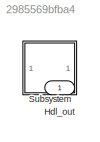
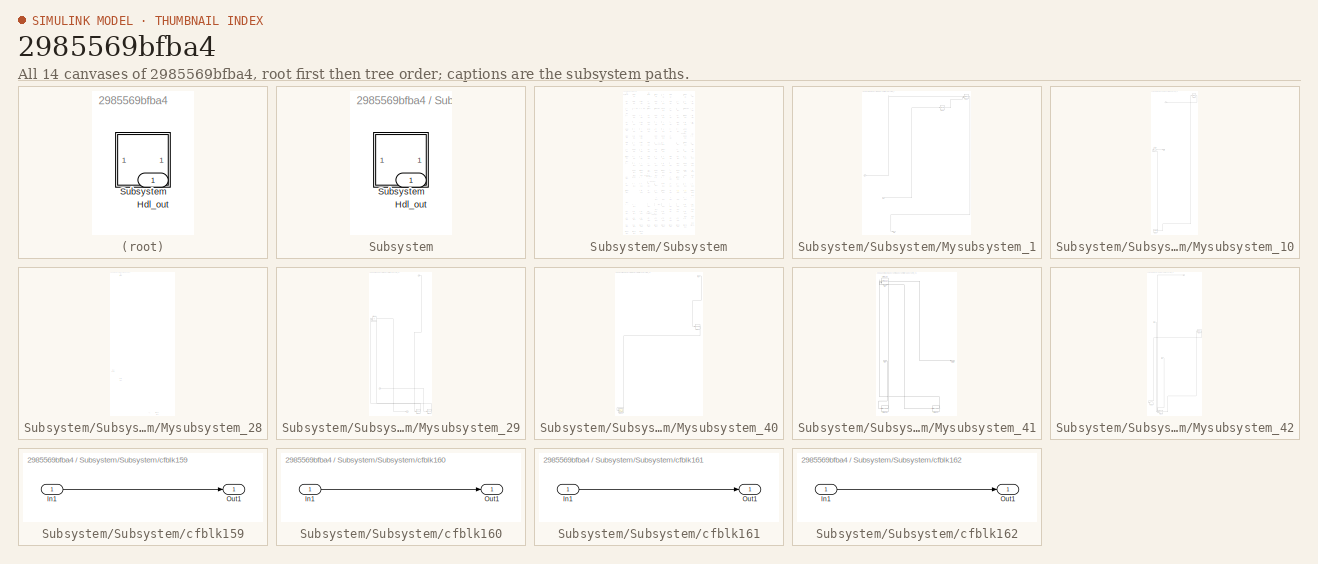
[diagram: thumbnail index - all 14 canvases of the model, root first then tree order]
MODEL slx_2985569bfba4
KIND model
CONFIG AbsTol = auto
CONFIG EnableMultiTasking = off
CONFIG FixedStep = auto
CONFIG MaxStep = auto
CONFIG MinStep = auto
CONFIG RelTol = 1e-3
CONFIG SampleTimeConstraint = Unconstrained
CONFIG SolverName = VariableStepAuto
CONFIG StartTime = 0.0
CONFIG StopTime = 10.0
BLOCK [Outport] Hdl_out
  OutDataTypeStr = uint8
BLOCK [SubSystem] Subsystem
BLOCK [Outport] Subsystem/Hdl_out
  OutDataTypeStr = uint8
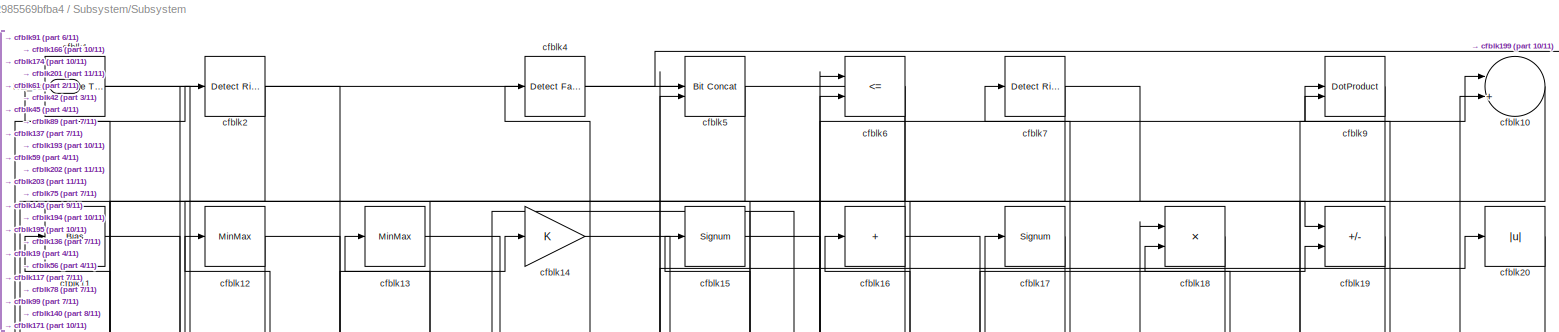
[diagram: Subsystem/Subsystem - part 1/11, full width, top band]
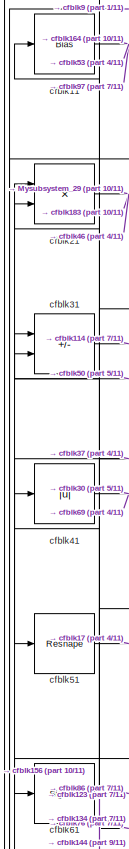
[diagram: Subsystem/Subsystem - part 2/11, top left region]
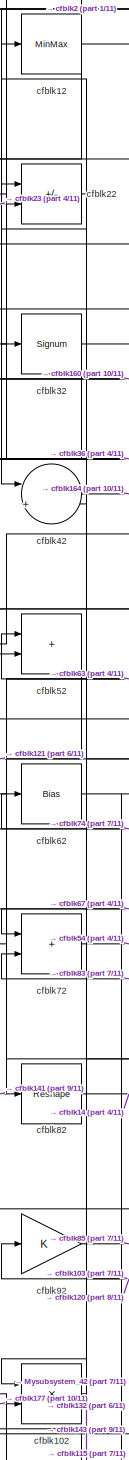
[diagram: Subsystem/Subsystem - part 3/11, top left region]
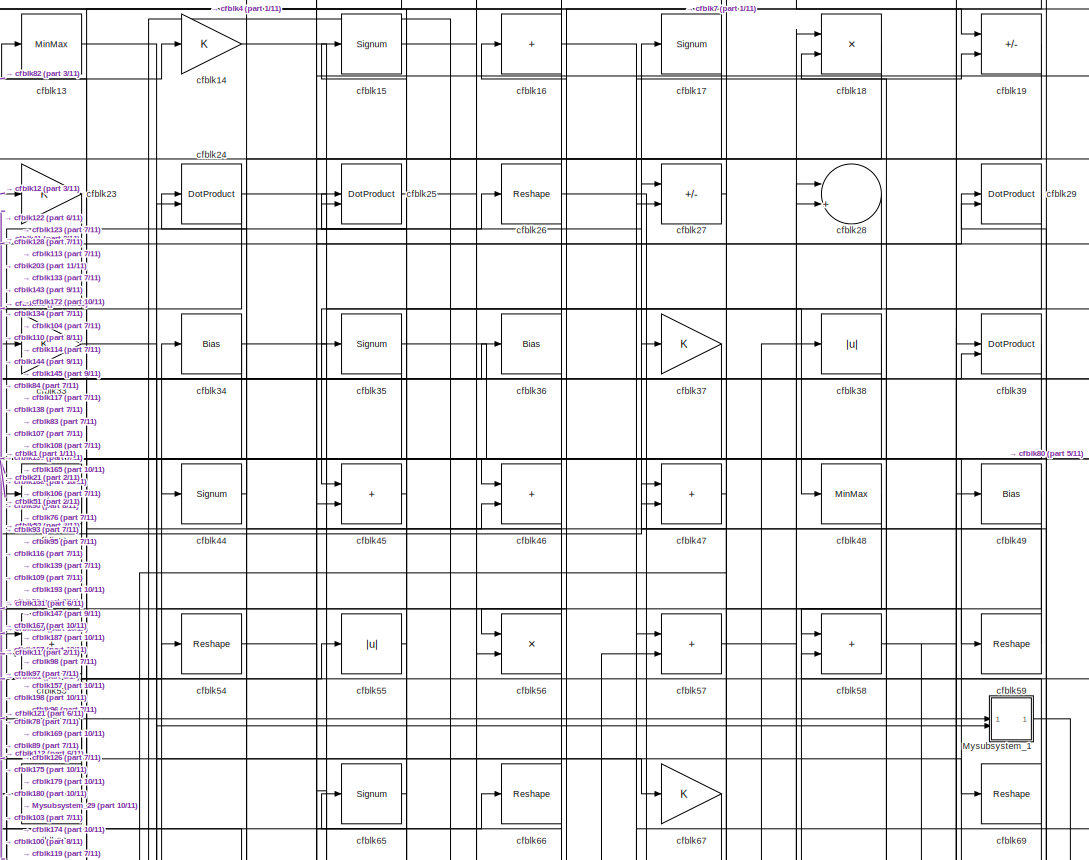
[diagram: Subsystem/Subsystem - part 4/11, top center region]
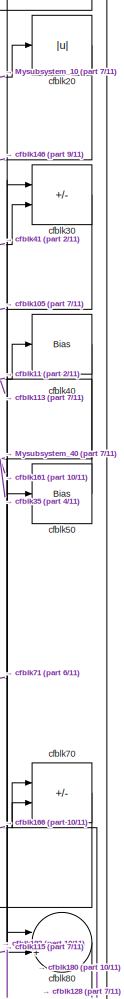
[diagram: Subsystem/Subsystem - part 5/11, top right region]
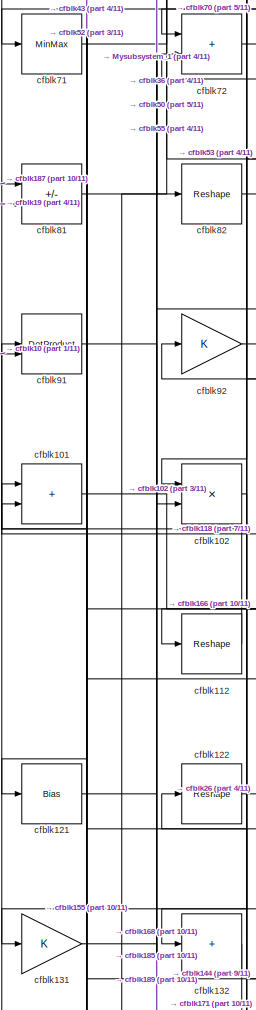
[diagram: Subsystem/Subsystem - part 6/11, middle left region]
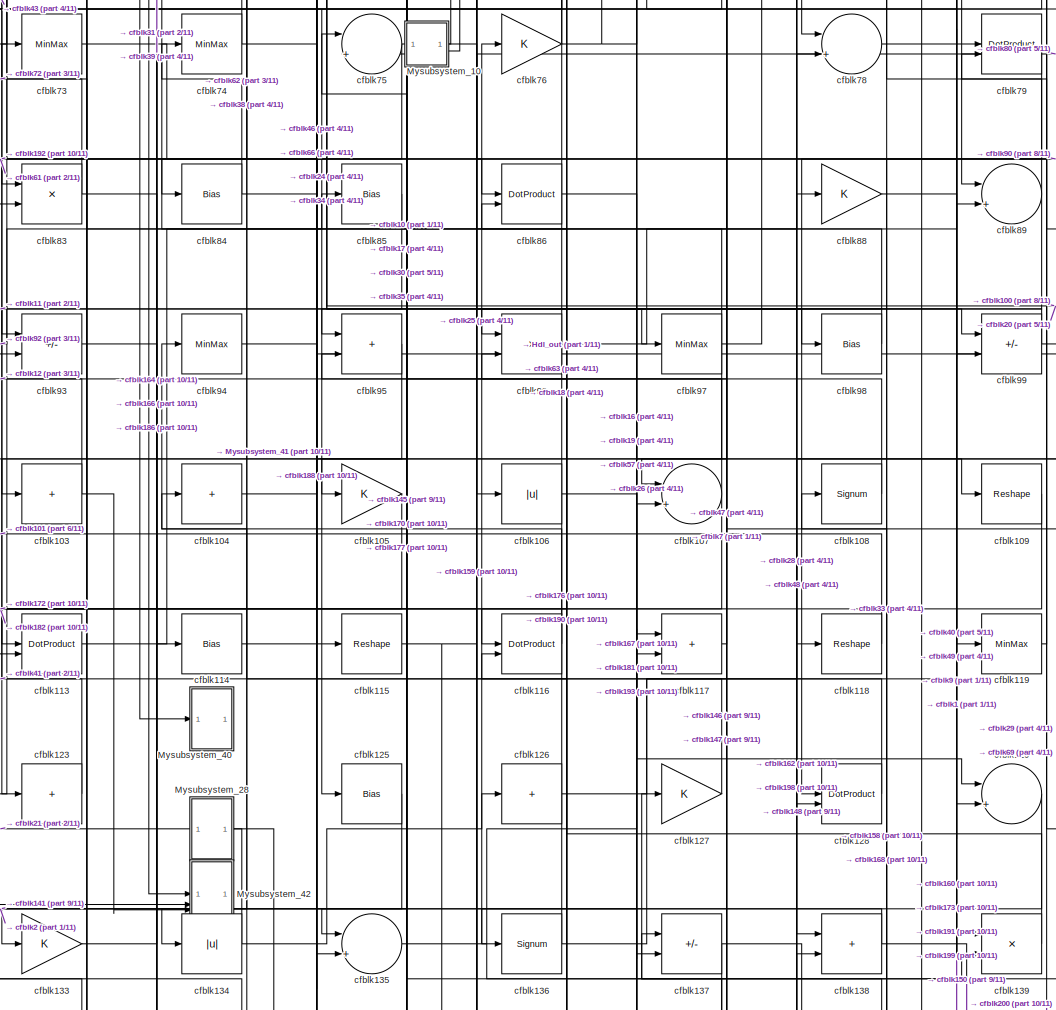
[diagram: Subsystem/Subsystem - part 7/11, central region]
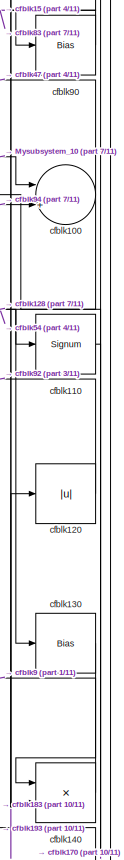
[diagram: Subsystem/Subsystem - part 8/11, middle right region]
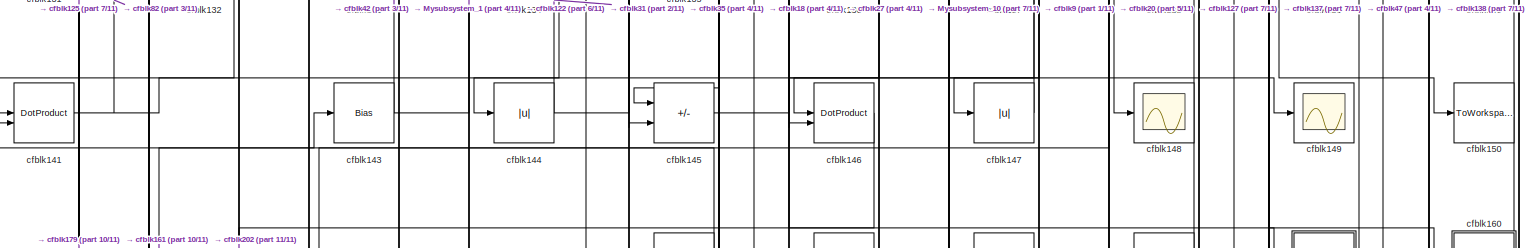
[diagram: Subsystem/Subsystem - part 9/11, full width, bottom band]
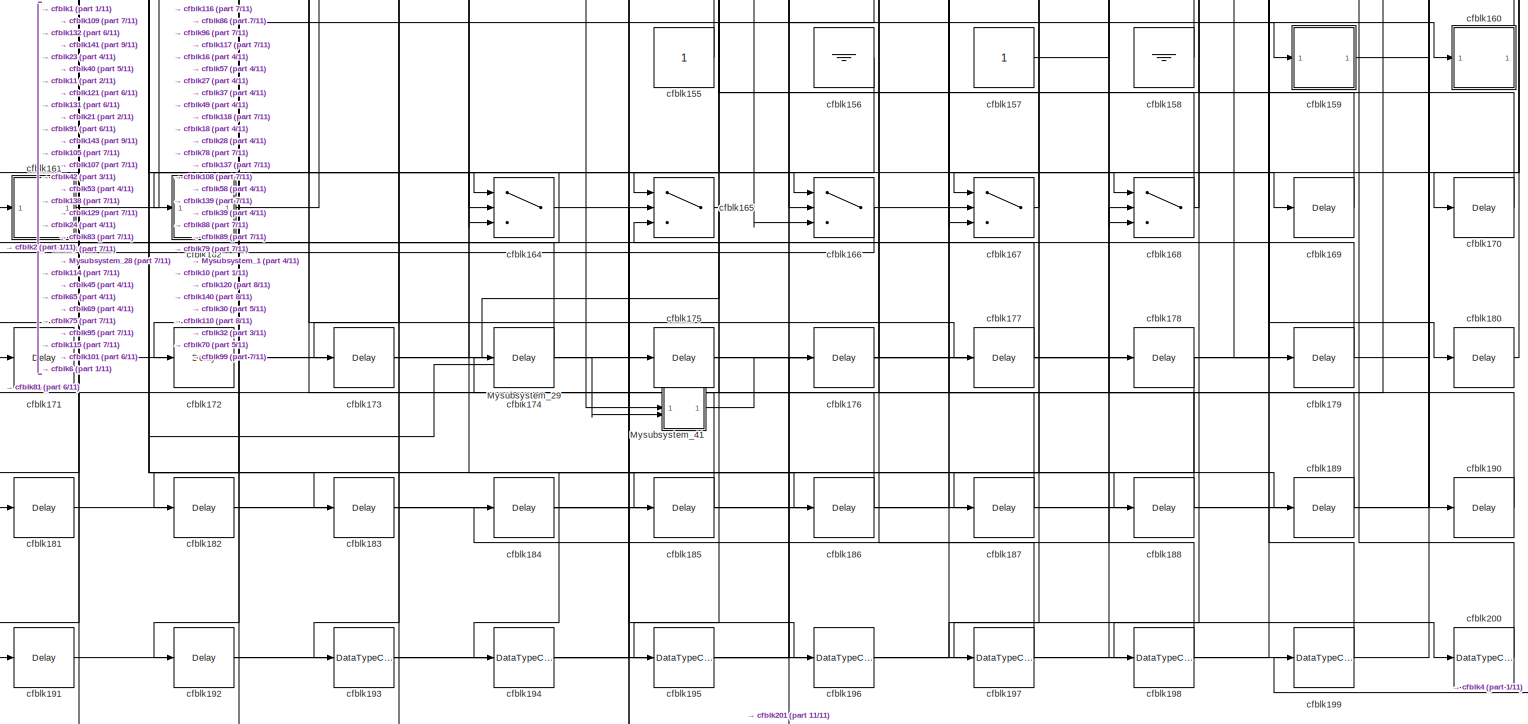
[diagram: Subsystem/Subsystem - part 10/11, full width, bottom band]
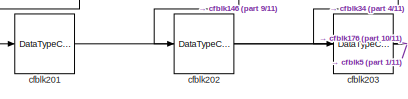
[diagram: Subsystem/Subsystem - part 11/11, bottom left region]
BLOCK [SubSystem] Subsystem/Subsystem
BLOCK [Outport] Subsystem/Subsystem/Hdl_out
  OutDataTypeStr = uint8
BLOCK [SubSystem] Subsystem/Subsystem/Mysubsystem_1
  RTWFcnName = Mysubsystem_1
  RTWFcnNameOpts = User specified
  RTWFileNameOpts = Use function name
  RTWSystemCode = Reusable function
  TreatAsAtomicUnit = on
BLOCK [Inport] Subsystem/Subsystem/Mysubsystem_1/In1
BLOCK [Inport] Subsystem/Subsystem/Mysubsystem_1/In2
  Port = 2
BLOCK [Outport] Subsystem/Subsystem/Mysubsystem_1/Out1
BLOCK [DotProduct] Subsystem/Subsystem/Mysubsystem_1/cfblk60
  OutDataTypeStr = Inherit: Inherit via internal rule
BLOCK [Signum] Subsystem/Subsystem/Mysubsystem_1/cfblk68
BLOCK [SubSystem] Subsystem/Subsystem/Mysubsystem_10
  RTWFcnName = Mysubsystem_10
  RTWFcnNameOpts = User specified
  RTWFileNameOpts = Use function name
  RTWSystemCode = Reusable function
  TreatAsAtomicUnit = on
BLOCK [Outport] Subsystem/Subsystem/Mysubsystem_10/Out2
  Port = 2
BLOCK [Reference] Subsystem/Subsystem/Mysubsystem_10/cfblk154  REF=hdlsllib/Sources/Counter
Free-Running
  SourceBlock = hdlsllib/Sources/Counter\nFree-Running
  SourceType = Counter Free-Running
BLOCK [Gain] Subsystem/Subsystem/Mysubsystem_10/cfblk64
BLOCK [Reference] Subsystem/Subsystem/Mysubsystem_10/cfblk8  REF=simulink/Logic and Bit
Operations/Extract Bits
  LibrarySourceBlock = hdlsllib/Logic and Bit\nOperations/Extract Bits
  SourceBlock = simulink/Logic and Bit\nOperations/Extract Bits
  SourceType = Extract Bits
BLOCK [Outport] Subsystem/Subsystem/Mysubsystem_10/y
BLOCK [SubSystem] Subsystem/Subsystem/Mysubsystem_28
  RTWFcnName = Mysubsystem_28
  RTWFcnNameOpts = User specified
  RTWFileNameOpts = Use function name
  RTWSystemCode = Reusable function
  TreatAsAtomicUnit = on
BLOCK [Signum] Subsystem/Subsystem/Mysubsystem_28/cfblk142
BLOCK [Reference] Subsystem/Subsystem/Mysubsystem_28/cfblk153  REF=hdlsllib/Sources/Counter
Limited
  SourceBlock = hdlsllib/Sources/Counter\nLimited
  SourceType = Counter Limited
BLOCK [DataTypeConversion] Subsystem/Subsystem/Mysubsystem_28/cfblk208
  OutDataTypeStr = uint8
  RndMeth = Floor
  SaturateOnIntegerOverflow = off
BLOCK [Reference] Subsystem/Subsystem/Mysubsystem_28/cfblk3  REF=simulink/Logic and Bit
Operations/Extract Bits
  LibrarySourceBlock = hdlsllib/Logic and Bit\nOperations/Extract Bits
  SourceBlock = simulink/Logic and Bit\nOperations/Extract Bits
  SourceType = Extract Bits
BLOCK [Outport] Subsystem/Subsystem/Mysubsystem_28/y
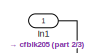
[diagram: Subsystem/Subsystem/Mysubsystem_29 - part 1/3, top right region]
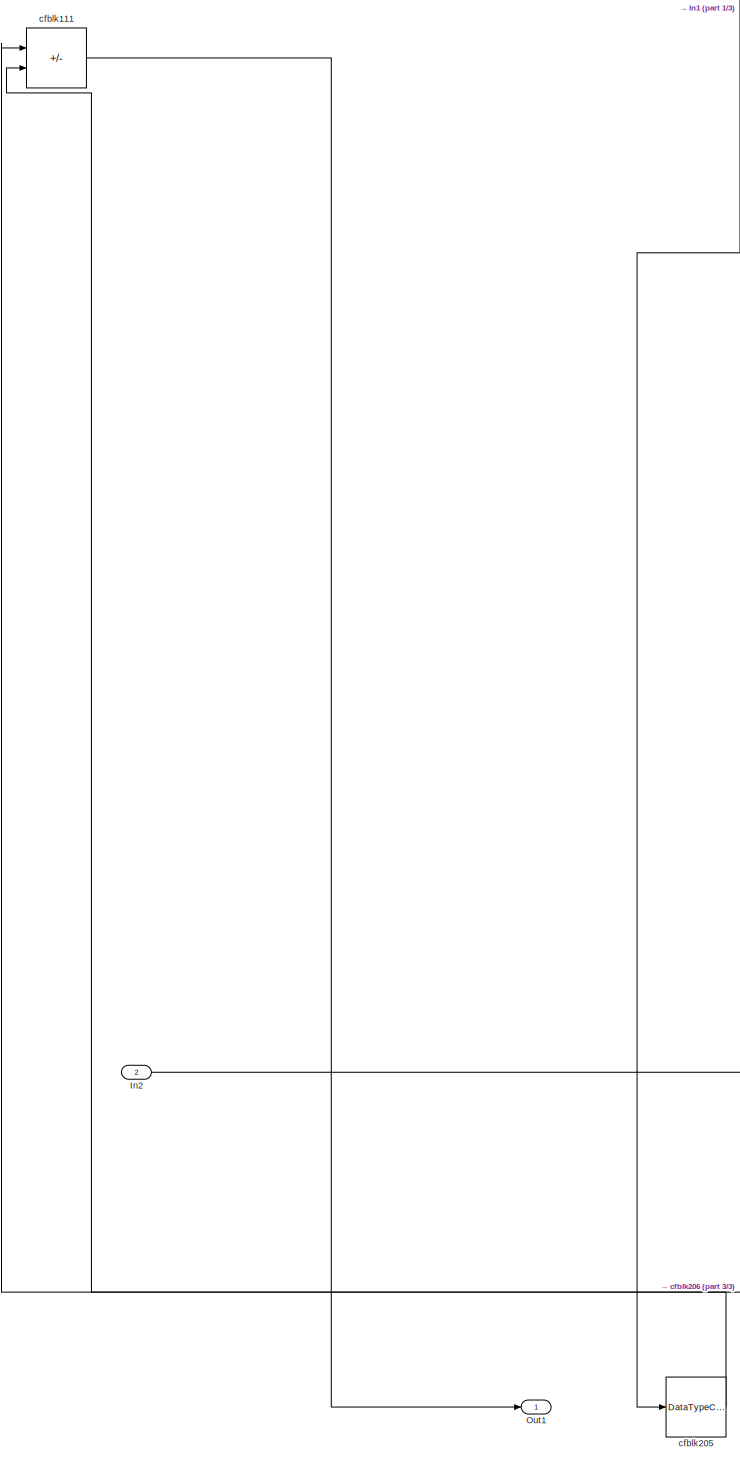
[diagram: Subsystem/Subsystem/Mysubsystem_29 - part 2/3, full width, middle band]
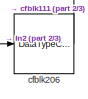
[diagram: Subsystem/Subsystem/Mysubsystem_29 - part 3/3, bottom right region]
BLOCK [SubSystem] Subsystem/Subsystem/Mysubsystem_29
  RTWFcnName = Mysubsystem_29
  RTWFcnNameOpts = User specified
  RTWFileNameOpts = Use function name
  RTWSystemCode = Reusable function
  TreatAsAtomicUnit = on
BLOCK [Inport] Subsystem/Subsystem/Mysubsystem_29/In1
BLOCK [Inport] Subsystem/Subsystem/Mysubsystem_29/In2
  Port = 2
BLOCK [Outport] Subsystem/Subsystem/Mysubsystem_29/Out1
BLOCK [Sum] Subsystem/Subsystem/Mysubsystem_29/cfblk111
  IconShape = rectangular
  Inputs = +-
BLOCK [DataTypeConversion] Subsystem/Subsystem/Mysubsystem_29/cfblk205
  OutDataTypeStr = uint8
  RndMeth = Floor
  SaturateOnIntegerOverflow = off
BLOCK [DataTypeConversion] Subsystem/Subsystem/Mysubsystem_29/cfblk206
  OutDataTypeStr = uint8
  RndMeth = Floor
  SaturateOnIntegerOverflow = off
BLOCK [SubSystem] Subsystem/Subsystem/Mysubsystem_40
  RTWFcnName = Mysubsystem_40
  RTWFcnNameOpts = User specified
  RTWFileNameOpts = Use function name
  RTWSystemCode = Reusable function
  TreatAsAtomicUnit = on
BLOCK [Inport] Subsystem/Subsystem/Mysubsystem_40/In1
BLOCK [Scope] Subsystem/Subsystem/Mysubsystem_40/cfblk151
  Floating = off
  NumInputPorts = 1
  ScopeSpecificationString = Simulink.scopes.TimeScopeBlockCfg('CurrentConfiguration', extmgr.ConfigurationSet(extmgr.Configuration('Core','General UI',true),extmgr.Configuration('Core','Source UI',true),extmgr.Configuration('Sources','WiredSimulink',true,'DataLoggingVariableName','ScopeData2','DataLoggingSaveFormat','Array','DataLoggingLimitDataPoints',true,'DataLoggingDecimation','1'),extmgr.Configuration('Visuals','Time Do...<+868ch>
BLOCK [Reshape] Subsystem/Subsystem/Mysubsystem_40/cfblk87
BLOCK [SubSystem] Subsystem/Subsystem/Mysubsystem_41
  RTWFcnName = Mysubsystem_41
  RTWFcnNameOpts = User specified
  RTWFileNameOpts = Use function name
  RTWSystemCode = Reusable function
  TreatAsAtomicUnit = on
BLOCK [Inport] Subsystem/Subsystem/Mysubsystem_41/In1
BLOCK [Inport] Subsystem/Subsystem/Mysubsystem_41/In2
  Port = 2
BLOCK [Outport] Subsystem/Subsystem/Mysubsystem_41/Out1
BLOCK [DotProduct] Subsystem/Subsystem/Mysubsystem_41/cfblk124
  OutDataTypeStr = Inherit: Inherit via internal rule
BLOCK [DataTypeConversion] Subsystem/Subsystem/Mysubsystem_41/cfblk204
  OutDataTypeStr = uint8
  RndMeth = Floor
  SaturateOnIntegerOverflow = off
BLOCK [DataTypeConversion] Subsystem/Subsystem/Mysubsystem_41/cfblk207
  OutDataTypeStr = uint8
  RndMeth = Floor
  SaturateOnIntegerOverflow = off
BLOCK [SubSystem] Subsystem/Subsystem/Mysubsystem_42
  RTWFcnName = Mysubsystem_42
  RTWFcnNameOpts = User specified
  RTWFileNameOpts = Use function name
  RTWSystemCode = Reusable function
  TreatAsAtomicUnit = on
BLOCK [Inport] Subsystem/Subsystem/Mysubsystem_42/In1
BLOCK [Inport] Subsystem/Subsystem/Mysubsystem_42/In2
  Port = 2
BLOCK [Inport] Subsystem/Subsystem/Mysubsystem_42/In3
  Port = 3
BLOCK [Terminator] Subsystem/Subsystem/Mysubsystem_42/cfblk152
BLOCK [Switch] Subsystem/Subsystem/Mysubsystem_42/cfblk163
  InputSameDT = off
  SaturateOnIntegerOverflow = off
BLOCK [MinMax] Subsystem/Subsystem/Mysubsystem_42/cfblk77
BLOCK [Reference] Subsystem/Subsystem/cfblk1  REF=hdlsllib/Logic and Bit
Operations/Compare
To Constant
  SourceBlock = hdlsllib/Logic and Bit\nOperations/Compare\nTo Constant
  SourceType = Compare To Constant
BLOCK [Sum] Subsystem/Subsystem/cfblk10
  Inputs = |++
  OutDataTypeStr = uint8
BLOCK [Sum] Subsystem/Subsystem/cfblk100
  Inputs = |++
  OutDataTypeStr = uint8
BLOCK [Sum] Subsystem/Subsystem/cfblk101
  IconShape = rectangular
  OutDataTypeStr = uint8
BLOCK [Product] Subsystem/Subsystem/cfblk102
  Inputs = */
  OutDataTypeStr = uint8
  RndMeth = Zero
  SaturateOnIntegerOverflow = on
BLOCK [Sum] Subsystem/Subsystem/cfblk103
  IconShape = rectangular
  Inputs = +
  OutDataTypeStr = uint8
BLOCK [Sum] Subsystem/Subsystem/cfblk104
  IconShape = rectangular
  Inputs = +
  OutDataTypeStr = uint8
BLOCK [Gain] Subsystem/Subsystem/cfblk105
  OutDataTypeStr = uint8
BLOCK [Abs] Subsystem/Subsystem/cfblk106
  OutDataTypeStr = uint8
  SaturateOnIntegerOverflow = off
BLOCK [Sum] Subsystem/Subsystem/cfblk107
  Inputs = |++
  OutDataTypeStr = uint8
BLOCK [Signum] Subsystem/Subsystem/cfblk108
BLOCK [Reshape] Subsystem/Subsystem/cfblk109
BLOCK [Bias] Subsystem/Subsystem/cfblk11
  Bias = 0.0
  SaturateOnIntegerOverflow = off
BLOCK [Signum] Subsystem/Subsystem/cfblk110
BLOCK [Reshape] Subsystem/Subsystem/cfblk112
BLOCK [DotProduct] Subsystem/Subsystem/cfblk113
  OutDataTypeStr = uint8
BLOCK [Bias] Subsystem/Subsystem/cfblk114
  Bias = 0.0
  SaturateOnIntegerOverflow = off
BLOCK [Reshape] Subsystem/Subsystem/cfblk115
BLOCK [DotProduct] Subsystem/Subsystem/cfblk116
  OutDataTypeStr = uint8
BLOCK [Sum] Subsystem/Subsystem/cfblk117
  IconShape = rectangular
  OutDataTypeStr = uint8
BLOCK [Reshape] Subsystem/Subsystem/cfblk118
BLOCK [MinMax] Subsystem/Subsystem/cfblk119
  OutDataTypeStr = uint8
BLOCK [MinMax] Subsystem/Subsystem/cfblk12
  OutDataTypeStr = uint8
BLOCK [Abs] Subsystem/Subsystem/cfblk120
  OutDataTypeStr = uint8
  SaturateOnIntegerOverflow = off
BLOCK [Bias] Subsystem/Subsystem/cfblk121
  Bias = 0.0
  SaturateOnIntegerOverflow = off
BLOCK [Reshape] Subsystem/Subsystem/cfblk122
BLOCK [Sum] Subsystem/Subsystem/cfblk123
  IconShape = rectangular
  Inputs = +
  OutDataTypeStr = uint8
BLOCK [Bias] Subsystem/Subsystem/cfblk125
  Bias = 0.0
  SaturateOnIntegerOverflow = off
BLOCK [Sum] Subsystem/Subsystem/cfblk126
  IconShape = rectangular
  Inputs = +
  OutDataTypeStr = uint8
BLOCK [Gain] Subsystem/Subsystem/cfblk127
  OutDataTypeStr = uint8
BLOCK [DotProduct] Subsystem/Subsystem/cfblk128
  OutDataTypeStr = uint8
BLOCK [Sum] Subsystem/Subsystem/cfblk129
  Inputs = |++
  OutDataTypeStr = uint8
BLOCK [MinMax] Subsystem/Subsystem/cfblk13
  OutDataTypeStr = uint8
BLOCK [Bias] Subsystem/Subsystem/cfblk130
  Bias = 0.0
  SaturateOnIntegerOverflow = off
BLOCK [Gain] Subsystem/Subsystem/cfblk131
  OutDataTypeStr = uint8
BLOCK [Sum] Subsystem/Subsystem/cfblk132
  IconShape = rectangular
  Inputs = +
  OutDataTypeStr = uint8
BLOCK [Gain] Subsystem/Subsystem/cfblk133
  OutDataTypeStr = uint8
BLOCK [Abs] Subsystem/Subsystem/cfblk134
  OutDataTypeStr = uint8
  SaturateOnIntegerOverflow = off
BLOCK [Sum] Subsystem/Subsystem/cfblk135
  Inputs = |++
  OutDataTypeStr = uint8
BLOCK [Signum] Subsystem/Subsystem/cfblk136
BLOCK [Sum] Subsystem/Subsystem/cfblk137
  IconShape = rectangular
  Inputs = +-
  OutDataTypeStr = uint8
BLOCK [Sum] Subsystem/Subsystem/cfblk138
  IconShape = rectangular
  OutDataTypeStr = uint8
BLOCK [Product] Subsystem/Subsystem/cfblk139
  Inputs = */
  OutDataTypeStr = uint8
  RndMeth = Zero
  SaturateOnIntegerOverflow = on
BLOCK [Gain] Subsystem/Subsystem/cfblk14
  OutDataTypeStr = uint8
BLOCK [Product] Subsystem/Subsystem/cfblk140
  Inputs = */
  OutDataTypeStr = uint8
  RndMeth = Zero
  SaturateOnIntegerOverflow = on
BLOCK [DotProduct] Subsystem/Subsystem/cfblk141
  OutDataTypeStr = uint8
BLOCK [Bias] Subsystem/Subsystem/cfblk143
  Bias = 0.0
  SaturateOnIntegerOverflow = off
BLOCK [Abs] Subsystem/Subsystem/cfblk144
  OutDataTypeStr = uint8
  SaturateOnIntegerOverflow = off
BLOCK [Sum] Subsystem/Subsystem/cfblk145
  IconShape = rectangular
  Inputs = +-
  OutDataTypeStr = uint8
BLOCK [DotProduct] Subsystem/Subsystem/cfblk146
  OutDataTypeStr = uint8
BLOCK [Abs] Subsystem/Subsystem/cfblk147
  OutDataTypeStr = uint8
  SaturateOnIntegerOverflow = off
BLOCK [Scope] Subsystem/Subsystem/cfblk148
  Floating = off
  NumInputPorts = 1
  ScopeSpecificationString = Simulink.scopes.TimeScopeBlockCfg('CurrentConfiguration', extmgr.ConfigurationSet(extmgr.Configuration('Core','General UI',true),extmgr.Configuration('Core','Source UI',true),extmgr.Configuration('Sources','WiredSimulink',true,'DataLoggingVariableName','ScopeData1','DataLoggingSaveFormat','Array','DataLoggingLimitDataPoints',true,'DataLoggingDecimation','1'),extmgr.Configuration('Visuals','Time Do...<+868ch>
BLOCK [Scope] Subsystem/Subsystem/cfblk149
  Floating = off
  NumInputPorts = 1
  ScopeSpecificationString = Simulink.scopes.TimeScopeBlockCfg('CurrentConfiguration', extmgr.ConfigurationSet(extmgr.Configuration('Core','General UI',true),extmgr.Configuration('Core','Source UI',true),extmgr.Configuration('Sources','WiredSimulink',true,'DataLoggingVariableName','ScopeData2','DataLoggingSaveFormat','Array','DataLoggingLimitDataPoints',true,'DataLoggingDecimation','1'),extmgr.Configuration('Visuals','Time Do...<+868ch>
BLOCK [Signum] Subsystem/Subsystem/cfblk15
BLOCK [ToWorkspace] Subsystem/Subsystem/cfblk150
  MaxDataPoints = inf
  SampleTime = -1
  SaveFormat = Timeseries
  VariableName = simout
BLOCK [Constant] Subsystem/Subsystem/cfblk155
  OutDataTypeStr = uint8
  SampleTime = -1
BLOCK [Ground] Subsystem/Subsystem/cfblk156
BLOCK [Constant] Subsystem/Subsystem/cfblk157
  OutDataTypeStr = uint8
  SampleTime = -1
BLOCK [Ground] Subsystem/Subsystem/cfblk158
BLOCK [SubSystem] Subsystem/Subsystem/cfblk159
  LibrarySourceBlock = hdlsllib/Ports &\nSubsystems/Subsystem
BLOCK [Inport] Subsystem/Subsystem/cfblk159/In1
BLOCK [Outport] Subsystem/Subsystem/cfblk159/Out1
BLOCK [Sum] Subsystem/Subsystem/cfblk16
  IconShape = rectangular
  Inputs = +
  OutDataTypeStr = uint8
BLOCK [SubSystem] Subsystem/Subsystem/cfblk160
  LibrarySourceBlock = hdlsllib/Ports &\nSubsystems/Subsystem
BLOCK [Inport] Subsystem/Subsystem/cfblk160/In1
BLOCK [Outport] Subsystem/Subsystem/cfblk160/Out1
BLOCK [SubSystem] Subsystem/Subsystem/cfblk161
  LibrarySourceBlock = hdlsllib/Ports &\nSubsystems/Subsystem
BLOCK [Inport] Subsystem/Subsystem/cfblk161/In1
BLOCK [Outport] Subsystem/Subsystem/cfblk161/Out1
BLOCK [SubSystem] Subsystem/Subsystem/cfblk162
  LibrarySourceBlock = hdlsllib/Ports &\nSubsystems/Subsystem
BLOCK [Inport] Subsystem/Subsystem/cfblk162/In1
BLOCK [Outport] Subsystem/Subsystem/cfblk162/Out1
BLOCK [Switch] Subsystem/Subsystem/cfblk164
  InputSameDT = off
  OutDataTypeStr = uint8
  SaturateOnIntegerOverflow = off
BLOCK [Switch] Subsystem/Subsystem/cfblk165
  InputSameDT = off
  OutDataTypeStr = uint8
  SaturateOnIntegerOverflow = off
BLOCK [Switch] Subsystem/Subsystem/cfblk166
  InputSameDT = off
  OutDataTypeStr = uint8
  SaturateOnIntegerOverflow = off
BLOCK [Switch] Subsystem/Subsystem/cfblk167
  InputSameDT = off
  OutDataTypeStr = uint8
  SaturateOnIntegerOverflow = off
BLOCK [Switch] Subsystem/Subsystem/cfblk168
  InputSameDT = off
  OutDataTypeStr = uint8
  SaturateOnIntegerOverflow = off
BLOCK [Delay] Subsystem/Subsystem/cfblk169
  InputPortMap = u0
  SampleTime = 1
BLOCK [Signum] Subsystem/Subsystem/cfblk17
BLOCK [Delay] Subsystem/Subsystem/cfblk170
  InputPortMap = u0
  SampleTime = 1
BLOCK [Delay] Subsystem/Subsystem/cfblk171
  InputPortMap = u0
  SampleTime = 1
BLOCK [Delay] Subsystem/Subsystem/cfblk172
  InputPortMap = u0
  SampleTime = 1
BLOCK [Delay] Subsystem/Subsystem/cfblk173
  InputPortMap = u0
  SampleTime = 1
BLOCK [Delay] Subsystem/Subsystem/cfblk174
  InputPortMap = u0
  SampleTime = 1
BLOCK [Delay] Subsystem/Subsystem/cfblk175
  InputPortMap = u0
  SampleTime = 1
BLOCK [Delay] Subsystem/Subsystem/cfblk176
  InputPortMap = u0
  SampleTime = 1
BLOCK [Delay] Subsystem/Subsystem/cfblk177
  InputPortMap = u0
  SampleTime = 1
BLOCK [Delay] Subsystem/Subsystem/cfblk178
  InputPortMap = u0
  SampleTime = 1
BLOCK [Delay] Subsystem/Subsystem/cfblk179
  InputPortMap = u0
  SampleTime = 1
BLOCK [Product] Subsystem/Subsystem/cfblk18
  Inputs = */
  OutDataTypeStr = uint8
  RndMeth = Zero
  SaturateOnIntegerOverflow = on
BLOCK [Delay] Subsystem/Subsystem/cfblk180
  InputPortMap = u0
  SampleTime = 1
BLOCK [Delay] Subsystem/Subsystem/cfblk181
  InputPortMap = u0
  SampleTime = 1
BLOCK [Delay] Subsystem/Subsystem/cfblk182
  InputPortMap = u0
  SampleTime = 1
BLOCK [Delay] Subsystem/Subsystem/cfblk183
  InputPortMap = u0
  SampleTime = 1
BLOCK [Delay] Subsystem/Subsystem/cfblk184
  InputPortMap = u0
  SampleTime = 1
BLOCK [Delay] Subsystem/Subsystem/cfblk185
  InputPortMap = u0
  SampleTime = 1
BLOCK [Delay] Subsystem/Subsystem/cfblk186
  InputPortMap = u0
  SampleTime = 1
BLOCK [Delay] Subsystem/Subsystem/cfblk187
  InputPortMap = u0
  SampleTime = 1
BLOCK [Delay] Subsystem/Subsystem/cfblk188
  InputPortMap = u0
  SampleTime = 1
BLOCK [Delay] Subsystem/Subsystem/cfblk189
  InputPortMap = u0
  SampleTime = 1
BLOCK [Sum] Subsystem/Subsystem/cfblk19
  IconShape = rectangular
  Inputs = +-
  OutDataTypeStr = uint8
BLOCK [Delay] Subsystem/Subsystem/cfblk190
  InputPortMap = u0
  SampleTime = 1
BLOCK [Delay] Subsystem/Subsystem/cfblk191
  InputPortMap = u0
  SampleTime = 1
BLOCK [Delay] Subsystem/Subsystem/cfblk192
  InputPortMap = u0
  SampleTime = 1
BLOCK [DataTypeConversion] Subsystem/Subsystem/cfblk193
  OutDataTypeStr = uint8
  RndMeth = Floor
  SaturateOnIntegerOverflow = off
BLOCK [DataTypeConversion] Subsystem/Subsystem/cfblk194
  OutDataTypeStr = uint8
  RndMeth = Floor
  SaturateOnIntegerOverflow = off
BLOCK [DataTypeConversion] Subsystem/Subsystem/cfblk195
  OutDataTypeStr = uint8
  RndMeth = Floor
  SaturateOnIntegerOverflow = off
BLOCK [DataTypeConversion] Subsystem/Subsystem/cfblk196
  OutDataTypeStr = uint8
  RndMeth = Floor
  SaturateOnIntegerOverflow = off
BLOCK [DataTypeConversion] Subsystem/Subsystem/cfblk197
  OutDataTypeStr = uint8
  RndMeth = Floor
  SaturateOnIntegerOverflow = off
BLOCK [DataTypeConversion] Subsystem/Subsystem/cfblk198
  OutDataTypeStr = uint8
  RndMeth = Floor
  SaturateOnIntegerOverflow = off
BLOCK [DataTypeConversion] Subsystem/Subsystem/cfblk199
  OutDataTypeStr = uint8
  RndMeth = Floor
  SaturateOnIntegerOverflow = off
BLOCK [Reference] Subsystem/Subsystem/cfblk2  REF=hdlsllib/Logic and Bit
Operations/Detect Rise
Nonnegative
  SourceBlock = hdlsllib/Logic and Bit\nOperations/Detect Rise\nNonnegative
  SourceType = Detect Rise Nonnegative
BLOCK [Abs] Subsystem/Subsystem/cfblk20
  OutDataTypeStr = uint8
  SaturateOnIntegerOverflow = off
BLOCK [DataTypeConversion] Subsystem/Subsystem/cfblk200
  OutDataTypeStr = uint8
  RndMeth = Floor
  SaturateOnIntegerOverflow = off
BLOCK [DataTypeConversion] Subsystem/Subsystem/cfblk201
  OutDataTypeStr = uint8
  RndMeth = Floor
  SaturateOnIntegerOverflow = off
BLOCK [DataTypeConversion] Subsystem/Subsystem/cfblk202
  OutDataTypeStr = uint8
  RndMeth = Floor
  SaturateOnIntegerOverflow = off
BLOCK [DataTypeConversion] Subsystem/Subsystem/cfblk203
  OutDataTypeStr = uint8
  RndMeth = Floor
  SaturateOnIntegerOverflow = off
BLOCK [Product] Subsystem/Subsystem/cfblk21
  Inputs = */
  OutDataTypeStr = uint8
  RndMeth = Zero
  SaturateOnIntegerOverflow = on
BLOCK [Sum] Subsystem/Subsystem/cfblk22
  IconShape = rectangular
  Inputs = +-
  OutDataTypeStr = uint8
BLOCK [Gain] Subsystem/Subsystem/cfblk23
  OutDataTypeStr = uint8
BLOCK [DotProduct] Subsystem/Subsystem/cfblk24
  OutDataTypeStr = uint8
BLOCK [DotProduct] Subsystem/Subsystem/cfblk25
  OutDataTypeStr = uint8
BLOCK [Reshape] Subsystem/Subsystem/cfblk26
BLOCK [Sum] Subsystem/Subsystem/cfblk27
  IconShape = rectangular
  Inputs = +-
  OutDataTypeStr = uint8
BLOCK [Sum] Subsystem/Subsystem/cfblk28
  Inputs = |++
  OutDataTypeStr = uint8
BLOCK [DotProduct] Subsystem/Subsystem/cfblk29
  OutDataTypeStr = uint8
BLOCK [Sum] Subsystem/Subsystem/cfblk30
  IconShape = rectangular
  Inputs = +-
  OutDataTypeStr = uint8
BLOCK [Sum] Subsystem/Subsystem/cfblk31
  IconShape = rectangular
  Inputs = +-
  OutDataTypeStr = uint8
BLOCK [Signum] Subsystem/Subsystem/cfblk32
BLOCK [Gain] Subsystem/Subsystem/cfblk33
  OutDataTypeStr = uint8
BLOCK [Bias] Subsystem/Subsystem/cfblk34
  Bias = 0.0
  SaturateOnIntegerOverflow = off
BLOCK [Signum] Subsystem/Subsystem/cfblk35
BLOCK [Bias] Subsystem/Subsystem/cfblk36
  Bias = 0.0
  SaturateOnIntegerOverflow = off
BLOCK [Gain] Subsystem/Subsystem/cfblk37
  OutDataTypeStr = uint8
BLOCK [Abs] Subsystem/Subsystem/cfblk38
  OutDataTypeStr = uint8
  SaturateOnIntegerOverflow = off
BLOCK [DotProduct] Subsystem/Subsystem/cfblk39
  OutDataTypeStr = uint8
BLOCK [Reference] Subsystem/Subsystem/cfblk4  REF=hdlsllib/Logic and Bit
Operations/Detect Fall
Nonpositive
  SourceBlock = hdlsllib/Logic and Bit\nOperations/Detect Fall\nNonpositive
  SourceType = Detect Fall Nonpositive
BLOCK [Bias] Subsystem/Subsystem/cfblk40
  Bias = 0.0
  SaturateOnIntegerOverflow = off
BLOCK [Abs] Subsystem/Subsystem/cfblk41
  OutDataTypeStr = uint8
  SaturateOnIntegerOverflow = off
BLOCK [Sum] Subsystem/Subsystem/cfblk42
  Inputs = |++
  OutDataTypeStr = uint8
BLOCK [Signum] Subsystem/Subsystem/cfblk43
BLOCK [Signum] Subsystem/Subsystem/cfblk44
BLOCK [Sum] Subsystem/Subsystem/cfblk45
  IconShape = rectangular
  OutDataTypeStr = uint8
BLOCK [Sum] Subsystem/Subsystem/cfblk46
  IconShape = rectangular
  OutDataTypeStr = uint8
BLOCK [Sum] Subsystem/Subsystem/cfblk47
  IconShape = rectangular
  OutDataTypeStr = uint8
BLOCK [MinMax] Subsystem/Subsystem/cfblk48
  OutDataTypeStr = uint8
BLOCK [Bias] Subsystem/Subsystem/cfblk49
  Bias = 0.0
  SaturateOnIntegerOverflow = off
BLOCK [Reference] Subsystem/Subsystem/cfblk5  REF=hdlsllib/Logic and Bit
Operations/Bit Concat
  SourceBlock = hdlsllib/Logic and Bit\nOperations/Bit Concat
  SourceType = Bit Concat
BLOCK [Bias] Subsystem/Subsystem/cfblk50
  Bias = 0.0
  SaturateOnIntegerOverflow = off
BLOCK [Reshape] Subsystem/Subsystem/cfblk51
BLOCK [Sum] Subsystem/Subsystem/cfblk52
  IconShape = rectangular
  OutDataTypeStr = uint8
BLOCK [Sum] Subsystem/Subsystem/cfblk53
  IconShape = rectangular
  OutDataTypeStr = uint8
BLOCK [Reshape] Subsystem/Subsystem/cfblk54
BLOCK [Abs] Subsystem/Subsystem/cfblk55
  OutDataTypeStr = uint8
  SaturateOnIntegerOverflow = off
BLOCK [Product] Subsystem/Subsystem/cfblk56
  Inputs = */
  OutDataTypeStr = uint8
  RndMeth = Zero
  SaturateOnIntegerOverflow = on
BLOCK [Sum] Subsystem/Subsystem/cfblk57
  IconShape = rectangular
  OutDataTypeStr = uint8
BLOCK [Sum] Subsystem/Subsystem/cfblk58
  IconShape = rectangular
  OutDataTypeStr = uint8
BLOCK [Reshape] Subsystem/Subsystem/cfblk59
BLOCK [RelationalOperator] Subsystem/Subsystem/cfblk6
  InputSameDT = off
  Operator = <=
  OutDataTypeStr = boolean
BLOCK [Signum] Subsystem/Subsystem/cfblk61
BLOCK [Bias] Subsystem/Subsystem/cfblk62
  Bias = 0.0
  SaturateOnIntegerOverflow = off
BLOCK [MinMax] Subsystem/Subsystem/cfblk63
  OutDataTypeStr = uint8
BLOCK [Signum] Subsystem/Subsystem/cfblk65
BLOCK [Reshape] Subsystem/Subsystem/cfblk66
BLOCK [Gain] Subsystem/Subsystem/cfblk67
  OutDataTypeStr = uint8
BLOCK [Reshape] Subsystem/Subsystem/cfblk69
BLOCK [Reference] Subsystem/Subsystem/cfblk7  REF=hdlsllib/Logic and Bit
Operations/Detect Rise
Positive
  SourceBlock = hdlsllib/Logic and Bit\nOperations/Detect Rise\nPositive
  SourceType = Detect Rise Positive
BLOCK [Sum] Subsystem/Subsystem/cfblk70
  IconShape = rectangular
  Inputs = +-
  OutDataTypeStr = uint8
BLOCK [MinMax] Subsystem/Subsystem/cfblk71
  OutDataTypeStr = uint8
BLOCK [Sum] Subsystem/Subsystem/cfblk72
  IconShape = rectangular
  OutDataTypeStr = uint8
BLOCK [MinMax] Subsystem/Subsystem/cfblk73
  OutDataTypeStr = uint8
BLOCK [MinMax] Subsystem/Subsystem/cfblk74
  OutDataTypeStr = uint8
BLOCK [Sum] Subsystem/Subsystem/cfblk75
  Inputs = |++
  OutDataTypeStr = uint8
BLOCK [Gain] Subsystem/Subsystem/cfblk76
  OutDataTypeStr = uint8
BLOCK [Sum] Subsystem/Subsystem/cfblk78
  Inputs = |++
  OutDataTypeStr = uint8
BLOCK [DotProduct] Subsystem/Subsystem/cfblk79
  OutDataTypeStr = uint8
BLOCK [Sum] Subsystem/Subsystem/cfblk80
  Inputs = |++
  OutDataTypeStr = uint8
BLOCK [Sum] Subsystem/Subsystem/cfblk81
  IconShape = rectangular
  Inputs = +-
  OutDataTypeStr = uint8
BLOCK [Reshape] Subsystem/Subsystem/cfblk82
BLOCK [Product] Subsystem/Subsystem/cfblk83
  Inputs = */
  OutDataTypeStr = uint8
  RndMeth = Zero
  SaturateOnIntegerOverflow = on
BLOCK [Bias] Subsystem/Subsystem/cfblk84
  Bias = 0.0
  SaturateOnIntegerOverflow = off
BLOCK [Bias] Subsystem/Subsystem/cfblk85
  Bias = 0.0
  SaturateOnIntegerOverflow = off
BLOCK [DotProduct] Subsystem/Subsystem/cfblk86
  OutDataTypeStr = uint8
BLOCK [Gain] Subsystem/Subsystem/cfblk88
  OutDataTypeStr = uint8
BLOCK [Sum] Subsystem/Subsystem/cfblk89
  Inputs = |++
  OutDataTypeStr = uint8
BLOCK [DotProduct] Subsystem/Subsystem/cfblk9
  OutDataTypeStr = uint8
BLOCK [Bias] Subsystem/Subsystem/cfblk90
  Bias = 0.0
  SaturateOnIntegerOverflow = off
BLOCK [DotProduct] Subsystem/Subsystem/cfblk91
  OutDataTypeStr = uint8
BLOCK [Gain] Subsystem/Subsystem/cfblk92
  OutDataTypeStr = uint8
BLOCK [Sum] Subsystem/Subsystem/cfblk93
  IconShape = rectangular
  Inputs = +-
  OutDataTypeStr = uint8
BLOCK [MinMax] Subsystem/Subsystem/cfblk94
  OutDataTypeStr = uint8
BLOCK [Sum] Subsystem/Subsystem/cfblk95
  IconShape = rectangular
  OutDataTypeStr = uint8
BLOCK [Product] Subsystem/Subsystem/cfblk96
  Inputs = */
  OutDataTypeStr = uint8
  RndMeth = Zero
  SaturateOnIntegerOverflow = on
BLOCK [MinMax] Subsystem/Subsystem/cfblk97
  OutDataTypeStr = uint8
BLOCK [Bias] Subsystem/Subsystem/cfblk98
  Bias = 0.0
  SaturateOnIntegerOverflow = off
BLOCK [Sum] Subsystem/Subsystem/cfblk99
  IconShape = rectangular
  Inputs = +-
  OutDataTypeStr = uint8
LINE Subsystem/Subsystem/Mysubsystem_1/In1:1 -> Subsystem/Subsystem/Mysubsystem_1/cfblk60:1
LINE Subsystem/Subsystem/Mysubsystem_1/In2:1 -> Subsystem/Subsystem/Mysubsystem_1/cfblk68:1
LINE Subsystem/Subsystem/Mysubsystem_1/cfblk60:1 -> Subsystem/Subsystem/Mysubsystem_1/Out1:1
LINE Subsystem/Subsystem/Mysubsystem_1/cfblk68:1 -> Subsystem/Subsystem/Mysubsystem_1/cfblk60:2
NET Subsystem/Subsystem/Mysubsystem_10/cfblk154:1 -> Subsystem/Subsystem/Mysubsystem_10/cfblk64:1, Subsystem/Subsystem/Mysubsystem_10/cfblk8:1
LINE Subsystem/Subsystem/Mysubsystem_10/cfblk64:1 -> Subsystem/Subsystem/Mysubsystem_10/Out2:1
LINE Subsystem/Subsystem/Mysubsystem_10/cfblk8:1 -> Subsystem/Subsystem/Mysubsystem_10/y:1
NET Subsystem/Subsystem/Mysubsystem_10:1 -> Subsystem/Subsystem/Mysubsystem_42:1, Subsystem/Subsystem/cfblk145:1
NET Subsystem/Subsystem/Mysubsystem_10:2 -> Subsystem/Subsystem/cfblk100:1, Subsystem/Subsystem/cfblk20:1
LINE Subsystem/Subsystem/Mysubsystem_1:1 -> Subsystem/Subsystem/cfblk174:1
LINE Subsystem/Subsystem/Mysubsystem_28/cfblk142:1 -> Subsystem/Subsystem/Mysubsystem_28/cfblk208:1
LINE Subsystem/Subsystem/Mysubsystem_28/cfblk153:1 -> Subsystem/Subsystem/Mysubsystem_28/cfblk142:1
LINE Subsystem/Subsystem/Mysubsystem_28/cfblk208:1 -> Subsystem/Subsystem/Mysubsystem_28/cfblk3:1
LINE Subsystem/Subsystem/Mysubsystem_28/cfblk3:1 -> Subsystem/Subsystem/Mysubsystem_28/y:1
LINE Subsystem/Subsystem/Mysubsystem_28:1 -> Subsystem/Subsystem/Mysubsystem_41:1
LINE Subsystem/Subsystem/Mysubsystem_29/In1:1 -> Subsystem/Subsystem/Mysubsystem_29/cfblk205:1
LINE Subsystem/Subsystem/Mysubsystem_29/In2:1 -> Subsystem/Subsystem/Mysubsystem_29/cfblk206:1
LINE Subsystem/Subsystem/Mysubsystem_29/cfblk111:1 -> Subsystem/Subsystem/Mysubsystem_29/Out1:1
LINE Subsystem/Subsystem/Mysubsystem_29/cfblk205:1 -> Subsystem/Subsystem/Mysubsystem_29/cfblk111:1
LINE Subsystem/Subsystem/Mysubsystem_29/cfblk206:1 -> Subsystem/Subsystem/Mysubsystem_29/cfblk111:2
LINE Subsystem/Subsystem/Mysubsystem_29:1 -> Subsystem/Subsystem/Mysubsystem_41:2
LINE Subsystem/Subsystem/Mysubsystem_40/In1:1 -> Subsystem/Subsystem/Mysubsystem_40/cfblk87:1
LINE Subsystem/Subsystem/Mysubsystem_40/cfblk87:1 -> Subsystem/Subsystem/Mysubsystem_40/cfblk151:1
LINE Subsystem/Subsystem/Mysubsystem_41/In1:1 -> Subsystem/Subsystem/Mysubsystem_41/cfblk207:1
LINE Subsystem/Subsystem/Mysubsystem_41/In2:1 -> Subsystem/Subsystem/Mysubsystem_41/cfblk204:1
LINE Subsystem/Subsystem/Mysubsystem_41/cfblk124:1 -> Subsystem/Subsystem/Mysubsystem_41/Out1:1
LINE Subsystem/Subsystem/Mysubsystem_41/cfblk204:1 -> Subsystem/Subsystem/Mysubsystem_41/cfblk124:1
LINE Subsystem/Subsystem/Mysubsystem_41/cfblk207:1 -> Subsystem/Subsystem/Mysubsystem_41/cfblk124:2
LINE Subsystem/Subsystem/Mysubsystem_41:1 -> Subsystem/Subsystem/cfblk178:1
LINE Subsystem/Subsystem/Mysubsystem_42/In1:1 -> Subsystem/Subsystem/Mysubsystem_42/cfblk163:3
LINE Subsystem/Subsystem/Mysubsystem_42/In2:1 -> Subsystem/Subsystem/Mysubsystem_42/cfblk163:2
LINE Subsystem/Subsystem/Mysubsystem_42/In3:1 -> Subsystem/Subsystem/Mysubsystem_42/cfblk163:1
LINE Subsystem/Subsystem/Mysubsystem_42/cfblk163:1 -> Subsystem/Subsystem/Mysubsystem_42/cfblk77:1
LINE Subsystem/Subsystem/Mysubsystem_42/cfblk77:1 -> Subsystem/Subsystem/Mysubsystem_42/cfblk152:1
NET Subsystem/Subsystem/cfblk100:1 -> Subsystem/Subsystem/cfblk128:2, Subsystem/Subsystem/cfblk130:1, Subsystem/Subsystem/cfblk47:2
LINE Subsystem/Subsystem/cfblk101:1 -> Subsystem/Subsystem/cfblk166:2
LINE Subsystem/Subsystem/cfblk102:1 -> Subsystem/Subsystem/cfblk132:1
NET Subsystem/Subsystem/cfblk103:1 -> Subsystem/Subsystem/Mysubsystem_42:3, Subsystem/Subsystem/cfblk12:1
LINE Subsystem/Subsystem/cfblk104:1 -> Subsystem/Subsystem/cfblk46:2
LINE Subsystem/Subsystem/cfblk105:1 -> Subsystem/Subsystem/cfblk182:1
LINE Subsystem/Subsystem/cfblk106:1 -> Subsystem/Subsystem/cfblk129:1
NET Subsystem/Subsystem/cfblk107:1 -> Subsystem/Subsystem/cfblk172:1, Subsystem/Subsystem/cfblk25:2
LINE Subsystem/Subsystem/cfblk108:1 -> Subsystem/Subsystem/cfblk35:1
LINE Subsystem/Subsystem/cfblk109:1 -> Subsystem/Subsystem/cfblk191:1
NET Subsystem/Subsystem/cfblk10:1 -> Subsystem/Subsystem/cfblk75:2, Subsystem/Subsystem/cfblk91:2
LINE Subsystem/Subsystem/cfblk110:1 -> Subsystem/Subsystem/cfblk170:1
LINE Subsystem/Subsystem/cfblk112:1 -> Subsystem/Subsystem/cfblk91:1
LINE Subsystem/Subsystem/cfblk113:1 -> Subsystem/Subsystem/cfblk40:1
NET Subsystem/Subsystem/cfblk114:1 -> Subsystem/Subsystem/cfblk188:1, Subsystem/Subsystem/cfblk29:2
NET Subsystem/Subsystem/cfblk115:1 -> Subsystem/Subsystem/cfblk159:1, Subsystem/Subsystem/cfblk166:3, Subsystem/Subsystem/cfblk80:2
LINE Subsystem/Subsystem/cfblk116:1 -> Subsystem/Subsystem/cfblk94:1
LINE Subsystem/Subsystem/cfblk117:1 -> Subsystem/Subsystem/cfblk7:1
LINE Subsystem/Subsystem/cfblk118:1 -> Subsystem/Subsystem/cfblk101:2
LINE Subsystem/Subsystem/cfblk119:1 -> Subsystem/Subsystem/cfblk29:1
NET Subsystem/Subsystem/cfblk11:1 -> Subsystem/Subsystem/cfblk164:3, Subsystem/Subsystem/cfblk53:2, Subsystem/Subsystem/cfblk97:1
LINE Subsystem/Subsystem/cfblk120:1 -> Subsystem/Subsystem/cfblk92:1
NET Subsystem/Subsystem/cfblk121:1 -> Subsystem/Subsystem/Mysubsystem_1:1, Subsystem/Subsystem/cfblk168:3
LINE Subsystem/Subsystem/cfblk122:1 -> Subsystem/Subsystem/cfblk26:1
LINE Subsystem/Subsystem/cfblk123:1 -> Subsystem/Subsystem/cfblk41:1
LINE Subsystem/Subsystem/cfblk125:1 -> Subsystem/Subsystem/cfblk141:1
LINE Subsystem/Subsystem/cfblk126:1 -> Subsystem/Subsystem/cfblk49:1
LINE Subsystem/Subsystem/cfblk127:1 -> Subsystem/Subsystem/cfblk104:1
LINE Subsystem/Subsystem/cfblk128:1 -> Subsystem/Subsystem/cfblk43:1
LINE Subsystem/Subsystem/cfblk129:1 -> Subsystem/Subsystem/cfblk173:1
NET Subsystem/Subsystem/cfblk12:1 -> Subsystem/Subsystem/cfblk22:2, Subsystem/Subsystem/cfblk23:1
LINE Subsystem/Subsystem/cfblk130:1 -> Subsystem/Subsystem/cfblk140:1
LINE Subsystem/Subsystem/cfblk131:1 -> Subsystem/Subsystem/cfblk189:1
LINE Subsystem/Subsystem/cfblk132:1 -> Subsystem/Subsystem/cfblk171:1
LINE Subsystem/Subsystem/cfblk133:1 -> Subsystem/Subsystem/cfblk39:2
NET Subsystem/Subsystem/cfblk134:1 -> Subsystem/Subsystem/cfblk126:1, Subsystem/Subsystem/cfblk21:2
NET Subsystem/Subsystem/cfblk135:1 -> Subsystem/Subsystem/cfblk107:2, Subsystem/Subsystem/cfblk139:2, Subsystem/Subsystem/cfblk76:1
NET Subsystem/Subsystem/cfblk136:1 -> Subsystem/Subsystem/Hdl_out:1, Subsystem/Subsystem/cfblk88:1
NET Subsystem/Subsystem/cfblk137:1 -> Subsystem/Subsystem/cfblk146:2, Subsystem/Subsystem/cfblk148:1
NET Subsystem/Subsystem/cfblk138:1 -> Subsystem/Subsystem/cfblk136:1, Subsystem/Subsystem/cfblk150:1
LINE Subsystem/Subsystem/cfblk139:1 -> Subsystem/Subsystem/cfblk16:1
LINE Subsystem/Subsystem/cfblk13:1 -> Subsystem/Subsystem/cfblk67:1
LINE Subsystem/Subsystem/cfblk140:1 -> Subsystem/Subsystem/cfblk9:1
NET Subsystem/Subsystem/cfblk141:1 -> Subsystem/Subsystem/cfblk149:1, Subsystem/Subsystem/cfblk82:1
NET Subsystem/Subsystem/cfblk143:1 -> Subsystem/Subsystem/Mysubsystem_1:2, Subsystem/Subsystem/cfblk42:2
NET Subsystem/Subsystem/cfblk144:1 -> Subsystem/Subsystem/cfblk122:1, Subsystem/Subsystem/cfblk27:1, Subsystem/Subsystem/cfblk31:1
LINE Subsystem/Subsystem/cfblk145:1 -> Subsystem/Subsystem/cfblk9:2
LINE Subsystem/Subsystem/cfblk146:1 -> Subsystem/Subsystem/cfblk202:1
LINE Subsystem/Subsystem/cfblk147:1 -> Subsystem/Subsystem/cfblk127:1
LINE Subsystem/Subsystem/cfblk14:1 -> Subsystem/Subsystem/cfblk48:1
LINE Subsystem/Subsystem/cfblk155:1 -> Subsystem/Subsystem/cfblk101:1
NET Subsystem/Subsystem/cfblk156:1 -> Subsystem/Subsystem/cfblk162:1, Subsystem/Subsystem/cfblk21:1
LINE Subsystem/Subsystem/cfblk157:1 -> Subsystem/Subsystem/cfblk28:2
LINE Subsystem/Subsystem/cfblk158:1 -> Subsystem/Subsystem/cfblk137:1
LINE Subsystem/Subsystem/cfblk159/In1:1 -> Subsystem/Subsystem/cfblk159/Out1:1
LINE Subsystem/Subsystem/cfblk159:1 -> Subsystem/Subsystem/cfblk190:1
LINE Subsystem/Subsystem/cfblk15:1 -> Subsystem/Subsystem/cfblk90:1
LINE Subsystem/Subsystem/cfblk160/In1:1 -> Subsystem/Subsystem/cfblk160/Out1:1
LINE Subsystem/Subsystem/cfblk160:1 -> Subsystem/Subsystem/cfblk32:1
LINE Subsystem/Subsystem/cfblk161/In1:1 -> Subsystem/Subsystem/cfblk161/Out1:1
LINE Subsystem/Subsystem/cfblk161:1 -> Subsystem/Subsystem/cfblk143:1
LINE Subsystem/Subsystem/cfblk162/In1:1 -> Subsystem/Subsystem/cfblk162/Out1:1
LINE Subsystem/Subsystem/cfblk162:1 -> Subsystem/Subsystem/cfblk138:2
LINE Subsystem/Subsystem/cfblk164:1 -> Subsystem/Subsystem/cfblk175:1
LINE Subsystem/Subsystem/cfblk165:1 -> Subsystem/Subsystem/cfblk195:1
NET Subsystem/Subsystem/cfblk166:1 -> Subsystem/Subsystem/cfblk2:1, Subsystem/Subsystem/cfblk70:1
LINE Subsystem/Subsystem/cfblk167:1 -> Subsystem/Subsystem/cfblk37:1
NET Subsystem/Subsystem/cfblk168:1 -> Subsystem/Subsystem/cfblk108:1, Subsystem/Subsystem/cfblk65:1
LINE Subsystem/Subsystem/cfblk169:1 -> Subsystem/Subsystem/cfblk18:2
NET Subsystem/Subsystem/cfblk16:1 -> Subsystem/Subsystem/cfblk109:1, Subsystem/Subsystem/cfblk168:1
LINE Subsystem/Subsystem/cfblk170:1 -> Subsystem/Subsystem/cfblk95:2
LINE Subsystem/Subsystem/cfblk171:1 -> Subsystem/Subsystem/cfblk10:2
LINE Subsystem/Subsystem/cfblk172:1 -> Subsystem/Subsystem/cfblk24:2
LINE Subsystem/Subsystem/cfblk173:1 -> Subsystem/Subsystem/cfblk89:2
LINE Subsystem/Subsystem/cfblk174:1 -> Subsystem/Subsystem/cfblk1:1
LINE Subsystem/Subsystem/cfblk175:1 -> Subsystem/Subsystem/cfblk39:1
LINE Subsystem/Subsystem/cfblk176:1 -> Subsystem/Subsystem/cfblk96:2
LINE Subsystem/Subsystem/cfblk177:1 -> Subsystem/Subsystem/cfblk75:1
LINE Subsystem/Subsystem/cfblk178:1 -> Subsystem/Subsystem/cfblk194:1
LINE Subsystem/Subsystem/cfblk179:1 -> Subsystem/Subsystem/cfblk141:2
NET Subsystem/Subsystem/cfblk17:1 -> Subsystem/Subsystem/cfblk135:1, Subsystem/Subsystem/cfblk84:1
LINE Subsystem/Subsystem/cfblk180:1 -> Subsystem/Subsystem/cfblk70:2
LINE Subsystem/Subsystem/cfblk181:1 -> Subsystem/Subsystem/cfblk117:1
LINE Subsystem/Subsystem/cfblk182:1 -> Subsystem/Subsystem/cfblk30:1
LINE Subsystem/Subsystem/cfblk183:1 -> Subsystem/Subsystem/cfblk140:2
LINE Subsystem/Subsystem/cfblk184:1 -> Subsystem/Subsystem/cfblk196:1
LINE Subsystem/Subsystem/cfblk185:1 -> Subsystem/Subsystem/cfblk53:1
LINE Subsystem/Subsystem/cfblk186:1 -> Subsystem/Subsystem/cfblk165:3
LINE Subsystem/Subsystem/cfblk187:1 -> Subsystem/Subsystem/cfblk81:1
LINE Subsystem/Subsystem/cfblk188:1 -> Subsystem/Subsystem/cfblk167:2
LINE Subsystem/Subsystem/cfblk189:1 -> Subsystem/Subsystem/cfblk168:2
NET Subsystem/Subsystem/cfblk18:1 -> Subsystem/Subsystem/cfblk116:1, Subsystem/Subsystem/cfblk145:2, Subsystem/Subsystem/cfblk27:2
LINE Subsystem/Subsystem/cfblk190:1 -> Subsystem/Subsystem/cfblk116:2
LINE Subsystem/Subsystem/cfblk191:1 -> Subsystem/Subsystem/cfblk139:1
LINE Subsystem/Subsystem/cfblk192:1 -> Subsystem/Subsystem/cfblk165:2
NET Subsystem/Subsystem/cfblk193:1 -> Subsystem/Subsystem/cfblk118:1, Subsystem/Subsystem/cfblk120:1, Subsystem/Subsystem/cfblk57:1, Subsystem/Subsystem/cfblk78:2
LINE Subsystem/Subsystem/cfblk194:1 -> Subsystem/Subsystem/cfblk6:1
LINE Subsystem/Subsystem/cfblk195:1 -> Subsystem/Subsystem/cfblk6:2
LINE Subsystem/Subsystem/cfblk196:1 -> Subsystem/Subsystem/cfblk200:1
LINE Subsystem/Subsystem/cfblk197:1 -> Subsystem/Subsystem/cfblk184:1
NET Subsystem/Subsystem/cfblk198:1 -> Subsystem/Subsystem/cfblk18:1, Subsystem/Subsystem/cfblk86:2
LINE Subsystem/Subsystem/cfblk199:1 -> Subsystem/Subsystem/cfblk79:1
NET Subsystem/Subsystem/cfblk19:1 -> Subsystem/Subsystem/cfblk107:1, Subsystem/Subsystem/cfblk81:2
NET Subsystem/Subsystem/cfblk1:1 -> Subsystem/Subsystem/cfblk45:2, Subsystem/Subsystem/cfblk89:1
LINE Subsystem/Subsystem/cfblk200:1 -> Subsystem/Subsystem/cfblk79:2
LINE Subsystem/Subsystem/cfblk201:1 -> Subsystem/Subsystem/cfblk176:1
LINE Subsystem/Subsystem/cfblk202:1 -> Subsystem/Subsystem/cfblk5:1
LINE Subsystem/Subsystem/cfblk203:1 -> Subsystem/Subsystem/cfblk5:2
LINE Subsystem/Subsystem/cfblk20:1 -> Subsystem/Subsystem/cfblk146:1
NET Subsystem/Subsystem/cfblk21:1 -> Subsystem/Subsystem/Mysubsystem_29:2, Subsystem/Subsystem/cfblk183:1, Subsystem/Subsystem/cfblk46:1
LINE Subsystem/Subsystem/cfblk22:1 -> Subsystem/Subsystem/cfblk102:1
LINE Subsystem/Subsystem/cfblk23:1 -> Subsystem/Subsystem/cfblk181:1
NET Subsystem/Subsystem/cfblk24:1 -> Subsystem/Subsystem/cfblk117:2, Subsystem/Subsystem/cfblk83:2
LINE Subsystem/Subsystem/cfblk25:1 -> Subsystem/Subsystem/cfblk106:1
LINE Subsystem/Subsystem/cfblk26:1 -> Subsystem/Subsystem/cfblk119:1
LINE Subsystem/Subsystem/cfblk27:1 -> Subsystem/Subsystem/cfblk187:1
LINE Subsystem/Subsystem/cfblk28:1 -> Subsystem/Subsystem/cfblk45:1
LINE Subsystem/Subsystem/cfblk29:1 -> Subsystem/Subsystem/cfblk58:1
NET Subsystem/Subsystem/cfblk2:1 -> Subsystem/Subsystem/cfblk137:2, Subsystem/Subsystem/cfblk42:1
LINE Subsystem/Subsystem/cfblk30:1 -> Subsystem/Subsystem/cfblk105:1
LINE Subsystem/Subsystem/cfblk31:1 -> Subsystem/Subsystem/cfblk114:1
NET Subsystem/Subsystem/cfblk32:1 -> Subsystem/Subsystem/cfblk102:2, Subsystem/Subsystem/cfblk177:1
LINE Subsystem/Subsystem/cfblk33:1 -> Subsystem/Subsystem/cfblk59:1
NET Subsystem/Subsystem/cfblk34:1 -> Subsystem/Subsystem/cfblk138:1, Subsystem/Subsystem/cfblk203:1
NET Subsystem/Subsystem/cfblk35:1 -> Subsystem/Subsystem/cfblk113:1, Subsystem/Subsystem/cfblk144:1, Subsystem/Subsystem/cfblk80:1
LINE Subsystem/Subsystem/cfblk36:1 -> Subsystem/Subsystem/cfblk52:2
LINE Subsystem/Subsystem/cfblk37:1 -> Subsystem/Subsystem/cfblk51:1
LINE Subsystem/Subsystem/cfblk38:1 -> Subsystem/Subsystem/cfblk134:1
NET Subsystem/Subsystem/cfblk39:1 -> Subsystem/Subsystem/cfblk44:1, Subsystem/Subsystem/cfblk56:2
NET Subsystem/Subsystem/cfblk40:1 -> Subsystem/Subsystem/Mysubsystem_40:1, Subsystem/Subsystem/cfblk161:1
NET Subsystem/Subsystem/cfblk41:1 -> Subsystem/Subsystem/cfblk30:2, Subsystem/Subsystem/cfblk69:1
LINE Subsystem/Subsystem/cfblk42:1 -> Subsystem/Subsystem/cfblk164:1
LINE Subsystem/Subsystem/cfblk43:1 -> Subsystem/Subsystem/cfblk131:1
LINE Subsystem/Subsystem/cfblk44:1 -> Subsystem/Subsystem/cfblk24:1
LINE Subsystem/Subsystem/cfblk45:1 -> Subsystem/Subsystem/cfblk165:1
LINE Subsystem/Subsystem/cfblk46:1 -> Subsystem/Subsystem/cfblk123:1
LINE Subsystem/Subsystem/cfblk47:1 -> Subsystem/Subsystem/cfblk147:1
LINE Subsystem/Subsystem/cfblk48:1 -> Subsystem/Subsystem/cfblk78:1
LINE Subsystem/Subsystem/cfblk49:1 -> Subsystem/Subsystem/cfblk197:1
LINE Subsystem/Subsystem/cfblk4:1 -> Subsystem/Subsystem/cfblk199:1
LINE Subsystem/Subsystem/cfblk50:1 -> Subsystem/Subsystem/cfblk11:1
LINE Subsystem/Subsystem/cfblk51:1 -> Subsystem/Subsystem/cfblk17:1
LINE Subsystem/Subsystem/cfblk52:1 -> Subsystem/Subsystem/cfblk121:1
LINE Subsystem/Subsystem/cfblk53:1 -> Subsystem/Subsystem/cfblk112:1
LINE Subsystem/Subsystem/cfblk54:1 -> Subsystem/Subsystem/cfblk110:1
LINE Subsystem/Subsystem/cfblk55:1 -> Subsystem/Subsystem/cfblk25:1
LINE Subsystem/Subsystem/cfblk56:1 -> Subsystem/Subsystem/cfblk13:1
LINE Subsystem/Subsystem/cfblk57:1 -> Subsystem/Subsystem/cfblk169:1
NET Subsystem/Subsystem/cfblk58:1 -> Subsystem/Subsystem/cfblk179:1, Subsystem/Subsystem/cfblk180:1
LINE Subsystem/Subsystem/cfblk59:1 -> Subsystem/Subsystem/cfblk4:1
LINE Subsystem/Subsystem/cfblk5:1 -> Subsystem/Subsystem/cfblk201:1
LINE Subsystem/Subsystem/cfblk61:1 -> Subsystem/Subsystem/cfblk86:1
NET Subsystem/Subsystem/cfblk62:1 -> Subsystem/Subsystem/Mysubsystem_42:2, Subsystem/Subsystem/cfblk115:1
LINE Subsystem/Subsystem/cfblk63:1 -> Subsystem/Subsystem/cfblk52:1
LINE Subsystem/Subsystem/cfblk65:1 -> Subsystem/Subsystem/cfblk15:1
NET Subsystem/Subsystem/cfblk66:1 -> Subsystem/Subsystem/cfblk93:2, Subsystem/Subsystem/cfblk95:1
LINE Subsystem/Subsystem/cfblk67:1 -> Subsystem/Subsystem/cfblk72:1
NET Subsystem/Subsystem/cfblk69:1 -> Subsystem/Subsystem/Mysubsystem_29:1, Subsystem/Subsystem/cfblk103:1, Subsystem/Subsystem/cfblk58:2
LINE Subsystem/Subsystem/cfblk6:1 -> Subsystem/Subsystem/cfblk193:1
LINE Subsystem/Subsystem/cfblk70:1 -> Subsystem/Subsystem/cfblk71:1
LINE Subsystem/Subsystem/cfblk71:1 -> Subsystem/Subsystem/cfblk50:1
NET Subsystem/Subsystem/cfblk72:1 -> Subsystem/Subsystem/cfblk22:1, Subsystem/Subsystem/cfblk54:1
LINE Subsystem/Subsystem/cfblk73:1 -> Subsystem/Subsystem/cfblk129:2
NET Subsystem/Subsystem/cfblk74:1 -> Subsystem/Subsystem/cfblk135:2, Subsystem/Subsystem/cfblk62:1
NET Subsystem/Subsystem/cfblk75:1 -> Subsystem/Subsystem/cfblk192:1, Subsystem/Subsystem/cfblk99:1
NET Subsystem/Subsystem/cfblk76:1 -> Subsystem/Subsystem/cfblk19:2, Subsystem/Subsystem/cfblk31:2, Subsystem/Subsystem/cfblk57:2, Subsystem/Subsystem/cfblk63:1
LINE Subsystem/Subsystem/cfblk78:1 -> Subsystem/Subsystem/cfblk10:1
LINE Subsystem/Subsystem/cfblk79:1 -> Subsystem/Subsystem/cfblk198:1
NET Subsystem/Subsystem/cfblk7:1 -> Subsystem/Subsystem/cfblk19:1, Subsystem/Subsystem/cfblk56:1
LINE Subsystem/Subsystem/cfblk80:1 -> Subsystem/Subsystem/cfblk128:1
NET Subsystem/Subsystem/cfblk81:1 -> Subsystem/Subsystem/cfblk36:1, Subsystem/Subsystem/cfblk55:1
LINE Subsystem/Subsystem/cfblk82:1 -> Subsystem/Subsystem/cfblk14:1
NET Subsystem/Subsystem/cfblk83:1 -> Subsystem/Subsystem/cfblk166:1, Subsystem/Subsystem/cfblk186:1, Subsystem/Subsystem/cfblk72:2
NET Subsystem/Subsystem/cfblk84:1 -> Subsystem/Subsystem/cfblk66:1, Subsystem/Subsystem/cfblk74:1
LINE Subsystem/Subsystem/cfblk85:1 -> Subsystem/Subsystem/cfblk125:1
LINE Subsystem/Subsystem/cfblk86:1 -> Subsystem/Subsystem/cfblk98:1
LINE Subsystem/Subsystem/cfblk88:1 -> Subsystem/Subsystem/cfblk160:1
NET Subsystem/Subsystem/cfblk89:1 -> Subsystem/Subsystem/cfblk167:3, Subsystem/Subsystem/cfblk33:1
LINE Subsystem/Subsystem/cfblk90:1 -> Subsystem/Subsystem/cfblk83:1
LINE Subsystem/Subsystem/cfblk91:1 -> Subsystem/Subsystem/cfblk185:1
LINE Subsystem/Subsystem/cfblk92:1 -> Subsystem/Subsystem/cfblk85:1
LINE Subsystem/Subsystem/cfblk93:1 -> Subsystem/Subsystem/cfblk164:2
LINE Subsystem/Subsystem/cfblk94:1 -> Subsystem/Subsystem/cfblk100:2
LINE Subsystem/Subsystem/cfblk95:1 -> Subsystem/Subsystem/cfblk133:1
LINE Subsystem/Subsystem/cfblk96:1 -> Subsystem/Subsystem/cfblk28:1
NET Subsystem/Subsystem/cfblk97:1 -> Subsystem/Subsystem/cfblk113:2, Subsystem/Subsystem/cfblk34:1, Subsystem/Subsystem/cfblk38:1
NET Subsystem/Subsystem/cfblk98:1 -> Subsystem/Subsystem/cfblk47:1, Subsystem/Subsystem/cfblk73:1, Subsystem/Subsystem/cfblk96:1
NET Subsystem/Subsystem/cfblk99:1 -> Subsystem/Subsystem/cfblk167:1, Subsystem/Subsystem/cfblk93:1
NET Subsystem/Subsystem/cfblk9:1 -> Subsystem/Subsystem/cfblk61:1, Subsystem/Subsystem/cfblk99:2
note: NET lines group one-source signal fan-out (src -> all destinations, sorted); 1:1 wires keep LINE
